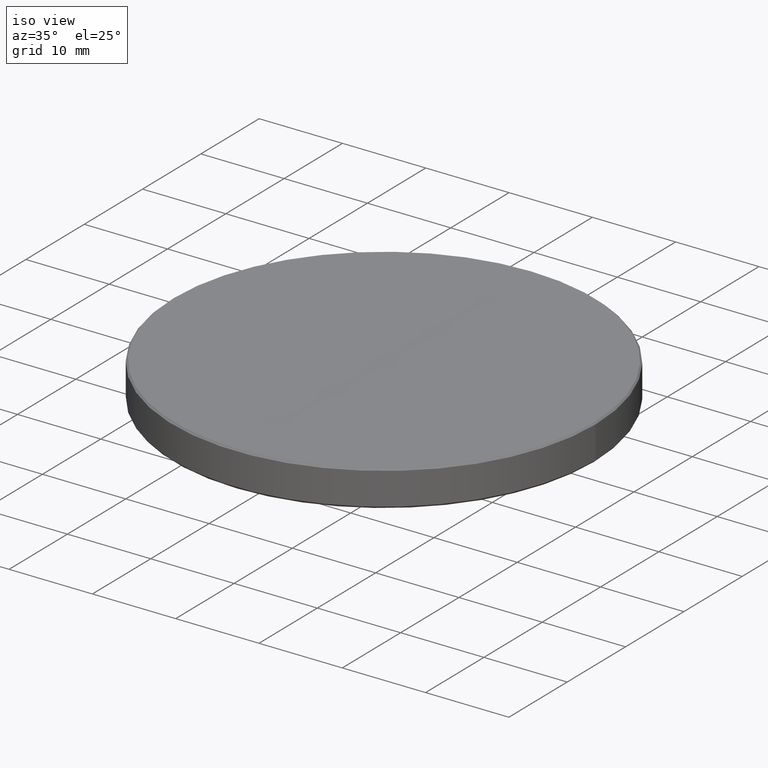
[diagram: clean part render]
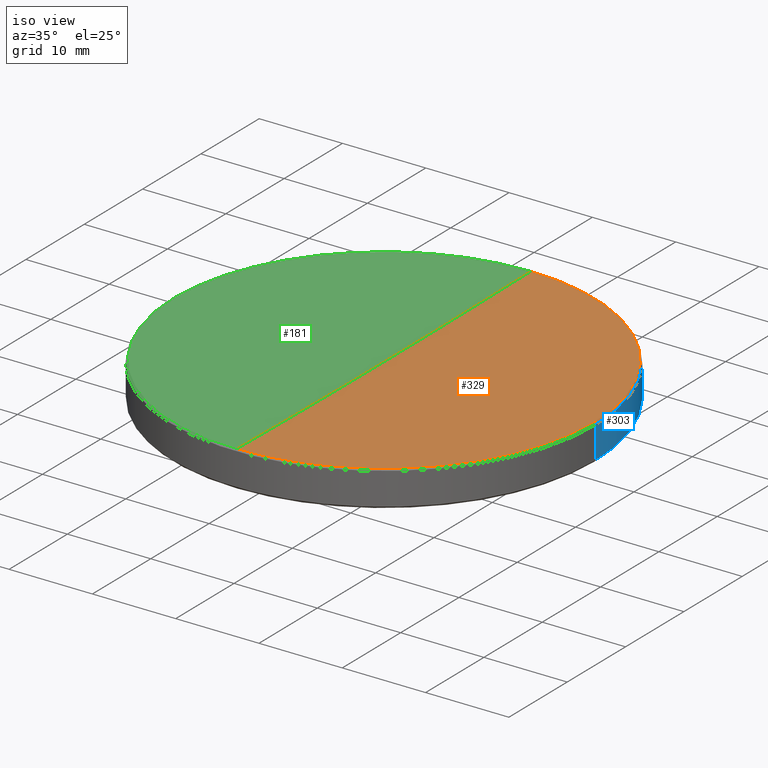
[diagram: same view with three faces highlighted in distinct colors, each labeled with its STEP entity id]
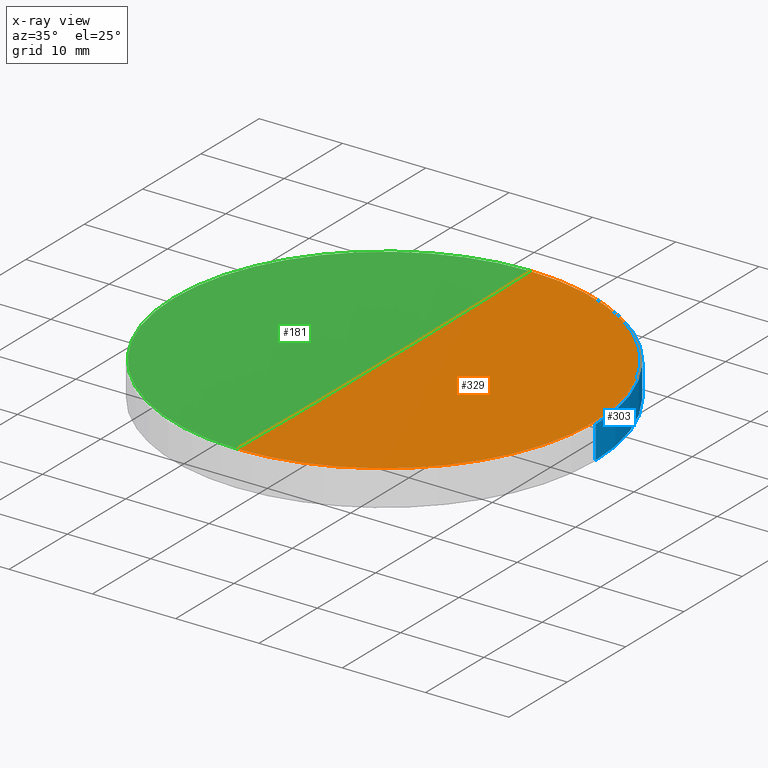
[diagram: x-ray of the same camera — body ghosted, the three highlighted faces saturated]
A machine part, iso view with three faces highlighted in distinct colors.
The next image is the same camera in x-ray (body ghosted, the three faces saturated) — at least one of them is partly hidden behind the body in this view.
Their STEP definitions:

[orange] entity #329 — the highlighted spherical surface has radius 1580.24 mm.
#3 = CARTESIAN_POINT ( 'NONE',  ( 25.20315217857431023, 3.098549417112872365E-15, 17.29684782142548727 ) ) ;
#12 = EDGE_LOOP ( 'NONE', ( #96, #62, #92, #68 ) ) ;
#17 = VERTEX_POINT ( 'NONE', #137 ) ;
#24 = EDGE_CURVE ( 'NONE', #17, #186, #111, .T. ) ;
#25 = DIRECTION ( 'NONE',  ( 0.000000000000000000, 1.000000000000000000, 0.000000000000000000 ) ) ;
#46 = AXIS2_PLACEMENT_3D ( 'NONE', #57, #158, #153 ) ;
#56 = SPHERICAL_SURFACE ( 'NONE', #91, 1580.240000000000236 ) ;
#57 = CARTESIAN_POINT ( 'NONE',  ( 0.000000000000000000, 0.000000000000000000, 17.29684782142548727 ) ) ;
#61 = DIRECTION ( 'NONE',  ( -0.000000000000000000, -0.000000000000000000, 1.000000000000000000 ) ) ;
#62 = ORIENTED_EDGE ( 'NONE', *, *, #24, .T. ) ;
#67 = VERTEX_POINT ( 'NONE', #3 ) ;
#68 = ORIENTED_EDGE ( 'NONE', *, *, #252, .T. ) ;
#79 = CARTESIAN_POINT ( 'NONE',  ( -3.086495964391225684E-15, -25.20315217857234202, 17.29684782142537713 ) ) ;
#80 = CIRCLE ( 'NONE', #267, 1580.240000000000236 ) ;
#83 = EDGE_CURVE ( 'NONE', #186, #67, #288, .T. ) ;
#91 = AXIS2_PLACEMENT_3D ( 'NONE', #157, #130, #25 ) ;
#92 = ORIENTED_EDGE ( 'NONE', *, *, #83, .T. ) ;
#96 = ORIENTED_EDGE ( 'NONE', *, *, #159, .F. ) ;
#99 = AXIS2_PLACEMENT_3D ( 'NONE', #214, #61, #240 ) ;
#103 = DIRECTION ( 'NONE',  ( -1.000000000000000000, 1.224646799147353207E-16, 0.000000000000000000 ) ) ;
#111 = CIRCLE ( 'NONE', #217, 1580.240000000000236 ) ;
#129 = CIRCLE ( 'NONE', #99, 25.20315217857431023 ) ;
#130 = DIRECTION ( 'NONE',  ( -1.000000000000000000, 0.000000000000000000, 0.000000000000000000 ) ) ;
#137 = CARTESIAN_POINT ( 'NONE',  ( 0.000000000000000000, 9.676179289423068622E-14, 17.09585326409612804 ) ) ;
#153 = DIRECTION ( 'NONE',  ( 1.000000000000000000, 0.000000000000000000, 0.000000000000000000 ) ) ;
#157 = CARTESIAN_POINT ( 'NONE',  ( 0.000000000000000000, 0.000000000000000000, 1597.335853264096386 ) ) ;
#158 = DIRECTION ( 'NONE',  ( -0.000000000000000000, -0.000000000000000000, 1.000000000000000000 ) ) ;
#159 = EDGE_CURVE ( 'NONE', #17, #239, #80, .T. ) ;
#186 = VERTEX_POINT ( 'NONE', #79 ) ;
#210 = DIRECTION ( 'NONE',  ( -1.224646799147353207E-16, -1.000000000000000000, 0.000000000000000000 ) ) ;
#214 = CARTESIAN_POINT ( 'NONE',  ( 0.000000000000000000, 0.000000000000000000, 17.29684782142548727 ) ) ;
#217 = AXIS2_PLACEMENT_3D ( 'NONE', #306, #103, #210 ) ;
#229 = CARTESIAN_POINT ( 'NONE',  ( 0.000000000000000000, 0.000000000000000000, 1597.335853264096386 ) ) ;
#237 = CARTESIAN_POINT ( 'NONE',  ( 0.000000000000000000, 25.20315217857234202, 17.29684782142537713 ) ) ;
#239 = VERTEX_POINT ( 'NONE', #237 ) ;
#240 = DIRECTION ( 'NONE',  ( 1.000000000000000000, 0.000000000000000000, 0.000000000000000000 ) ) ;
#252 = EDGE_CURVE ( 'NONE', #67, #239, #129, .T. ) ;
#258 = DIRECTION ( 'NONE',  ( 0.000000000000000000, 0.000000000000000000, -1.000000000000000000 ) ) ;
#267 = AXIS2_PLACEMENT_3D ( 'NONE', #229, #326, #258 ) ;
#275 = FACE_OUTER_BOUND ( 'NONE', #12, .T. ) ;
#288 = CIRCLE ( 'NONE', #46, 25.20315217857431023 ) ;
#306 = CARTESIAN_POINT ( 'NONE',  ( 0.000000000000000000, 0.000000000000000000, 1597.335853264096386 ) ) ;
#326 = DIRECTION ( 'NONE',  ( 1.000000000000000000, 0.000000000000000000, 0.000000000000000000 ) ) ;
#329 = ADVANCED_FACE ( 'NONE', ( #275 ), #56, .F. ) ;

[blue] entity #303 — the highlighted cylindrical surface (partial cylindrical patch) has radius 25.4 mm, axis along (-0, -0, -1).
#8 = VECTOR ( 'NONE', #161, 1000.000000000000000 ) ;
#20 = AXIS2_PLACEMENT_3D ( 'NONE', #208, #308, #182 ) ;
#36 = DIRECTION ( 'NONE',  ( -0.000000000000000000, -0.000000000000000000, 1.000000000000000000 ) ) ;
#37 = CIRCLE ( 'NONE', #266, 25.39999999999999858 ) ;
#39 = VERTEX_POINT ( 'NONE', #227 ) ;
#43 = ORIENTED_EDGE ( 'NONE', *, *, #259, .T. ) ;
#48 = EDGE_CURVE ( 'NONE', #281, #39, #250, .T. ) ;
#53 = CARTESIAN_POINT ( 'NONE',  ( -25.39999999999999858, 0.000000000000000000, 20.00000000000000000 ) ) ;
#59 = CARTESIAN_POINT ( 'NONE',  ( 25.39999999999999858, 3.110602869834276865E-15, 13.21592418636929978 ) ) ;
#65 = DIRECTION ( 'NONE',  ( -1.000000000000000000, 0.000000000000000000, 0.000000000000000000 ) ) ;
#74 = CYLINDRICAL_SURFACE ( 'NONE', #231, 25.39999999999999858 ) ;
#81 = DIRECTION ( 'NONE',  ( -0.000000000000000000, -0.000000000000000000, -1.000000000000000000 ) ) ;
#87 = EDGE_LOOP ( 'NONE', ( #305, #43, #215, #193 ) ) ;
#88 = CARTESIAN_POINT ( 'NONE',  ( 25.39999999999999858, 3.110602869834276865E-15, 17.09999999999989484 ) ) ;
#119 = LINE ( 'NONE', #196, #8 ) ;
#161 = DIRECTION ( 'NONE',  ( -0.000000000000000000, -0.000000000000000000, -1.000000000000000000 ) ) ;
#162 = VECTOR ( 'NONE', #183, 1000.000000000000000 ) ;
#170 = CIRCLE ( 'NONE', #20, 25.39999999999999858 ) ;
#175 = EDGE_CURVE ( 'NONE', #281, #218, #170, .T. ) ;
#182 = DIRECTION ( 'NONE',  ( 1.000000000000000000, 0.000000000000000000, 0.000000000000000000 ) ) ;
#183 = DIRECTION ( 'NONE',  ( -0.000000000000000000, -0.000000000000000000, -1.000000000000000000 ) ) ;
#193 = ORIENTED_EDGE ( 'NONE', *, *, #48, .F. ) ;
#196 = CARTESIAN_POINT ( 'NONE',  ( 25.39999999999999858, 3.110602869834276865E-15, 20.00000000000000000 ) ) ;
#201 = CARTESIAN_POINT ( 'NONE',  ( 0.000000000000000000, 0.000000000000000000, 20.00000000000000000 ) ) ;
#208 = CARTESIAN_POINT ( 'NONE',  ( 0.000000000000000000, 0.000000000000000000, 17.09999999999989484 ) ) ;
#215 = ORIENTED_EDGE ( 'NONE', *, *, #223, .T. ) ;
#218 = VERTEX_POINT ( 'NONE', #88 ) ;
#223 = EDGE_CURVE ( 'NONE', #318, #39, #37, .T. ) ;
#224 = FACE_OUTER_BOUND ( 'NONE', #87, .T. ) ;
#227 = CARTESIAN_POINT ( 'NONE',  ( -25.39999999999999858, 0.000000000000000000, 13.21592418636929978 ) ) ;
#231 = AXIS2_PLACEMENT_3D ( 'NONE', #201, #81, #255 ) ;
#250 = LINE ( 'NONE', #53, #162 ) ;
#255 = DIRECTION ( 'NONE',  ( -1.000000000000000000, 0.000000000000000000, 0.000000000000000000 ) ) ;
#259 = EDGE_CURVE ( 'NONE', #218, #318, #119, .T. ) ;
#266 = AXIS2_PLACEMENT_3D ( 'NONE', #287, #36, #65 ) ;
#281 = VERTEX_POINT ( 'NONE', #323 ) ;
#287 = CARTESIAN_POINT ( 'NONE',  ( 0.000000000000000000, 0.000000000000000000, 13.21592418636929978 ) ) ;
#303 = ADVANCED_FACE ( 'NONE', ( #224 ), #74, .T. ) ;
#305 = ORIENTED_EDGE ( 'NONE', *, *, #175, .T. ) ;
#308 = DIRECTION ( 'NONE',  ( 0.000000000000000000, 0.000000000000000000, -1.000000000000000000 ) ) ;
#318 = VERTEX_POINT ( 'NONE', #59 ) ;
#323 = CARTESIAN_POINT ( 'NONE',  ( -25.39999999999999858, 0.000000000000000000, 17.09999999999989484 ) ) ;

[green] entity #181 — the highlighted spherical surface has radius 1580.24 mm.
#1 = DIRECTION ( 'NONE',  ( -1.000000000000000000, 0.000000000000000000, 0.000000000000000000 ) ) ;
#11 = EDGE_CURVE ( 'NONE', #104, #186, #243, .T. ) ;
#17 = VERTEX_POINT ( 'NONE', #137 ) ;
#24 = EDGE_CURVE ( 'NONE', #17, #186, #111, .T. ) ;
#60 = DIRECTION ( 'NONE',  ( 1.000000000000000000, 0.000000000000000000, 0.000000000000000000 ) ) ;
#79 = CARTESIAN_POINT ( 'NONE',  ( -3.086495964391225684E-15, -25.20315217857234202, 17.29684782142537713 ) ) ;
#80 = CIRCLE ( 'NONE', #267, 1580.240000000000236 ) ;
#101 = CARTESIAN_POINT ( 'NONE',  ( 0.000000000000000000, 0.000000000000000000, 17.29684782142548727 ) ) ;
#103 = DIRECTION ( 'NONE',  ( -1.000000000000000000, 1.224646799147353207E-16, 0.000000000000000000 ) ) ;
#104 = VERTEX_POINT ( 'NONE', #131 ) ;
#106 = DIRECTION ( 'NONE',  ( 0.000000000000000000, 1.000000000000000000, 0.000000000000000000 ) ) ;
#111 = CIRCLE ( 'NONE', #217, 1580.240000000000236 ) ;
#125 = EDGE_CURVE ( 'NONE', #239, #104, #221, .T. ) ;
#127 = AXIS2_PLACEMENT_3D ( 'NONE', #101, #155, #204 ) ;
#131 = CARTESIAN_POINT ( 'NONE',  ( -25.20315217857431023, 0.000000000000000000, 17.29684782142548727 ) ) ;
#137 = CARTESIAN_POINT ( 'NONE',  ( 0.000000000000000000, 9.676179289423068622E-14, 17.09585326409612804 ) ) ;
#155 = DIRECTION ( 'NONE',  ( -0.000000000000000000, -0.000000000000000000, 1.000000000000000000 ) ) ;
#159 = EDGE_CURVE ( 'NONE', #17, #239, #80, .T. ) ;
#168 = ORIENTED_EDGE ( 'NONE', *, *, #11, .T. ) ;
#181 = ADVANCED_FACE ( 'NONE', ( #202 ), #185, .F. ) ;
#184 = EDGE_LOOP ( 'NONE', ( #263, #245, #198, #168 ) ) ;
#185 = SPHERICAL_SURFACE ( 'NONE', #246, 1580.240000000000236 ) ;
#186 = VERTEX_POINT ( 'NONE', #79 ) ;
#189 = CARTESIAN_POINT ( 'NONE',  ( 0.000000000000000000, 0.000000000000000000, 17.29684782142548727 ) ) ;
#198 = ORIENTED_EDGE ( 'NONE', *, *, #125, .T. ) ;
#202 = FACE_OUTER_BOUND ( 'NONE', #184, .T. ) ;
#204 = DIRECTION ( 'NONE',  ( 1.000000000000000000, 0.000000000000000000, 0.000000000000000000 ) ) ;
#210 = DIRECTION ( 'NONE',  ( -1.224646799147353207E-16, -1.000000000000000000, 0.000000000000000000 ) ) ;
#217 = AXIS2_PLACEMENT_3D ( 'NONE', #306, #103, #210 ) ;
#221 = CIRCLE ( 'NONE', #297, 25.20315217857431023 ) ;
#229 = CARTESIAN_POINT ( 'NONE',  ( 0.000000000000000000, 0.000000000000000000, 1597.335853264096386 ) ) ;
#237 = CARTESIAN_POINT ( 'NONE',  ( 0.000000000000000000, 25.20315217857234202, 17.29684782142537713 ) ) ;
#239 = VERTEX_POINT ( 'NONE', #237 ) ;
#243 = CIRCLE ( 'NONE', #127, 25.20315217857431023 ) ;
#245 = ORIENTED_EDGE ( 'NONE', *, *, #159, .T. ) ;
#246 = AXIS2_PLACEMENT_3D ( 'NONE', #276, #1, #106 ) ;
#258 = DIRECTION ( 'NONE',  ( 0.000000000000000000, 0.000000000000000000, -1.000000000000000000 ) ) ;
#263 = ORIENTED_EDGE ( 'NONE', *, *, #24, .F. ) ;
#267 = AXIS2_PLACEMENT_3D ( 'NONE', #229, #326, #258 ) ;
#276 = CARTESIAN_POINT ( 'NONE',  ( 0.000000000000000000, 0.000000000000000000, 1597.335853264096386 ) ) ;
#283 = DIRECTION ( 'NONE',  ( -0.000000000000000000, -0.000000000000000000, 1.000000000000000000 ) ) ;
#297 = AXIS2_PLACEMENT_3D ( 'NONE', #189, #283, #60 ) ;
#306 = CARTESIAN_POINT ( 'NONE',  ( 0.000000000000000000, 0.000000000000000000, 1597.335853264096386 ) ) ;
#326 = DIRECTION ( 'NONE',  ( 1.000000000000000000, 0.000000000000000000, 0.000000000000000000 ) ) ;